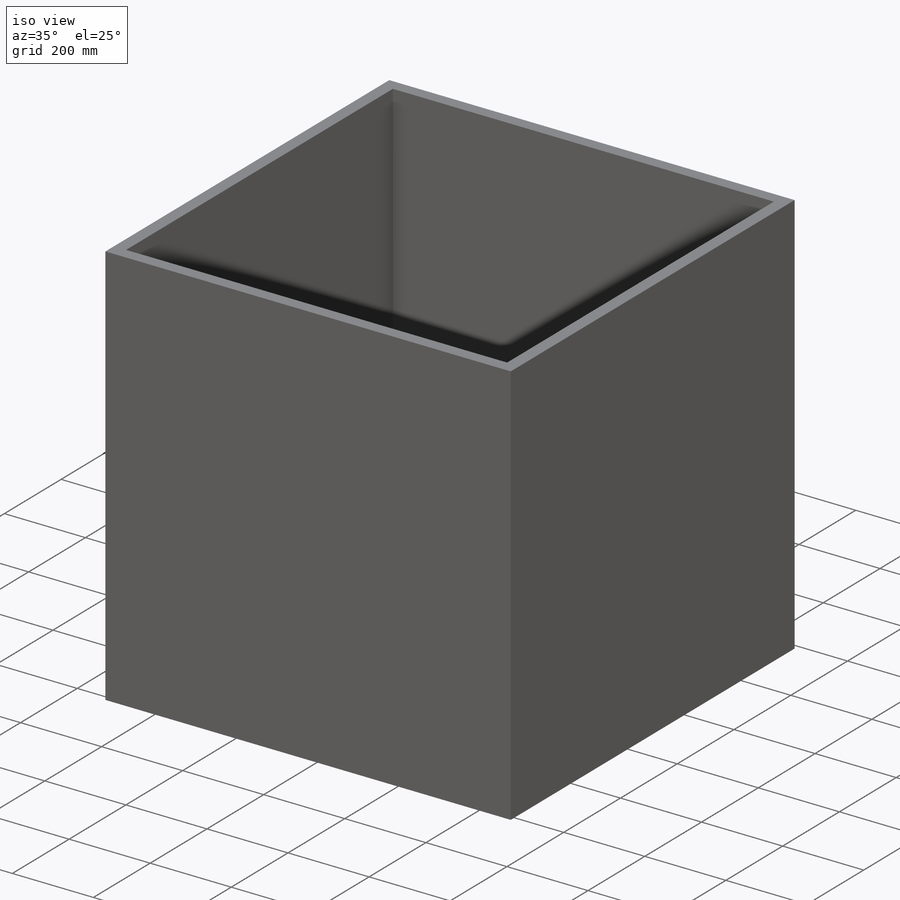
[diagram: iso view]
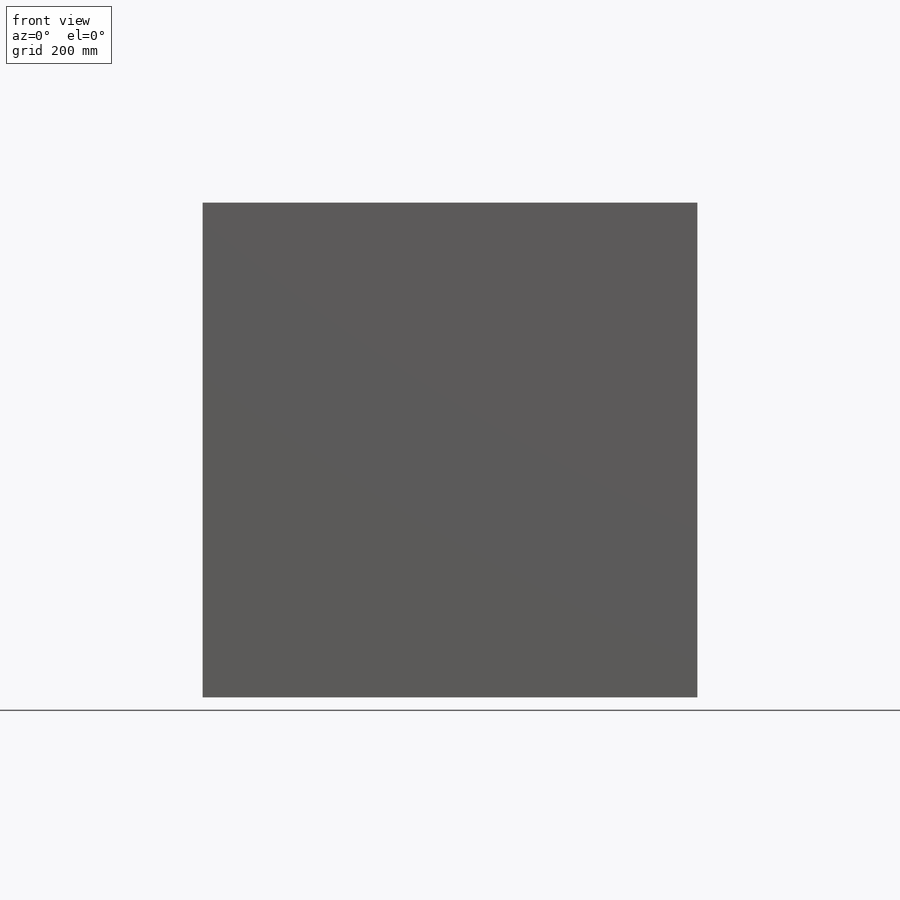
[diagram: front view]
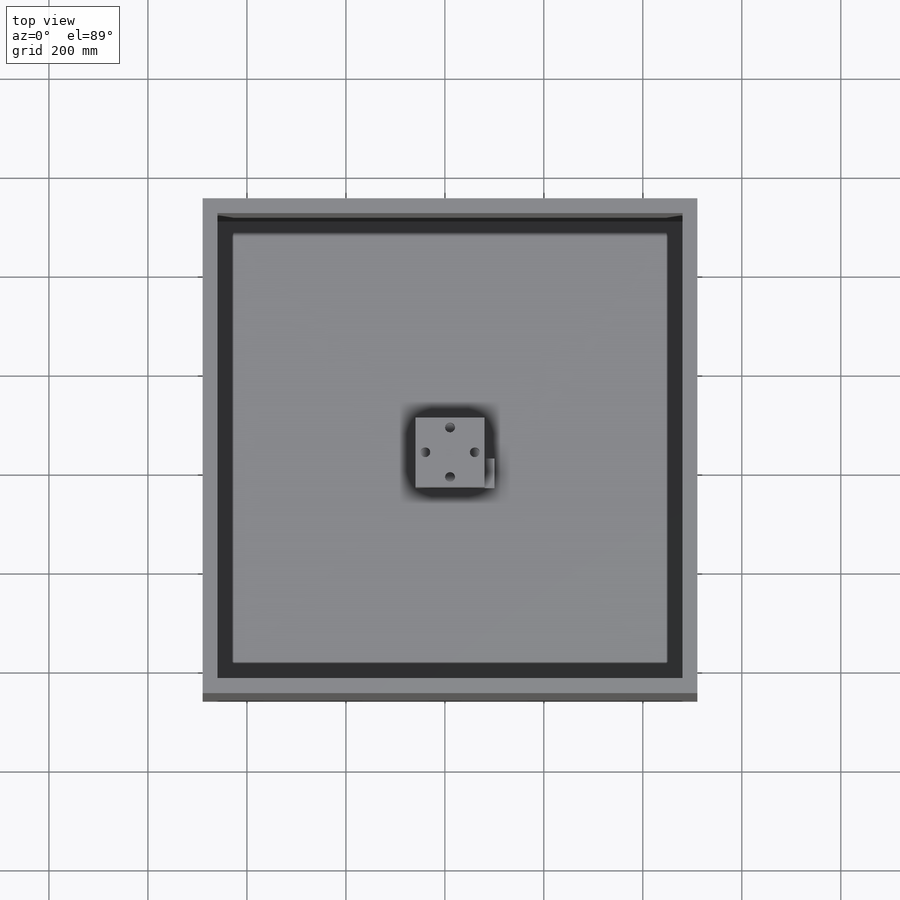
[diagram: top view]
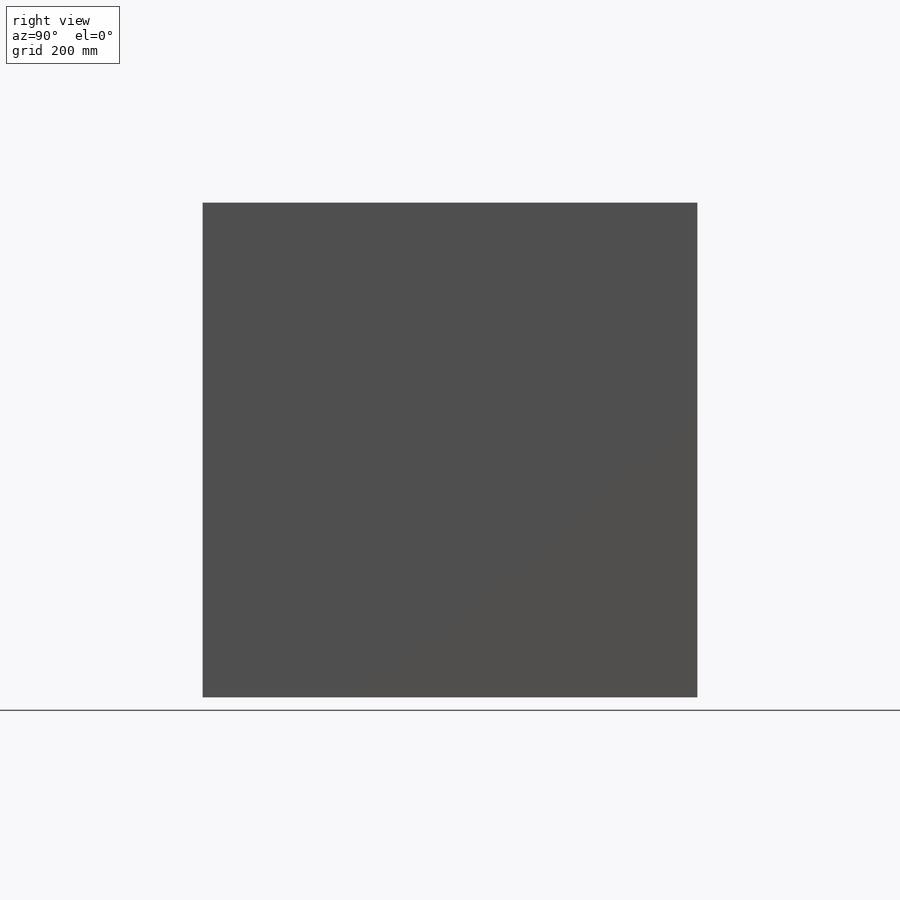
[diagram: right view]
SOLIDWORKS PART (.sldprt)
format: sldprt  version: not decoded by parser v0  size: 310,784 bytes
history: native  units: mm
features: sketch x7, extrude x3, material x1, shell x1, cut_extrude x1 (+11 scaffold rows collapsed)
feature tree (24):
  scaffold x11  (default folders/planes/origin — collapsed)
  material  "Material <not specified>"
  sketch  "Sketch1"  dims[D1=1000.0mm]
  extrude  "Boss-Extrude1"  Depth=1000mm
  sketch  "Sketch2"
  shell  "Shell1"  Thickness=30mm
  sketch  "Sketch4"  dims[D1=140.0mm]
  extrude  "Boss-Extrude2"  Depth=200mm
  sketch  "Sketch5"  dims[D1=50.0mm]
  extrude  "Boss-Extrude3"  Depth=20mm
  sketch  "Sketch6"  dims[D1=10.0mm]
  sketch  "Sketch8"
  cut_extrude  "Cut-Extrude5"  Depth=80mm
  sketch  "Sketch9"
decode coverage: 9 of 12 modeling features carry decoded parameters
note: suppression state not decoded; provenance and decode notes live in map.json
